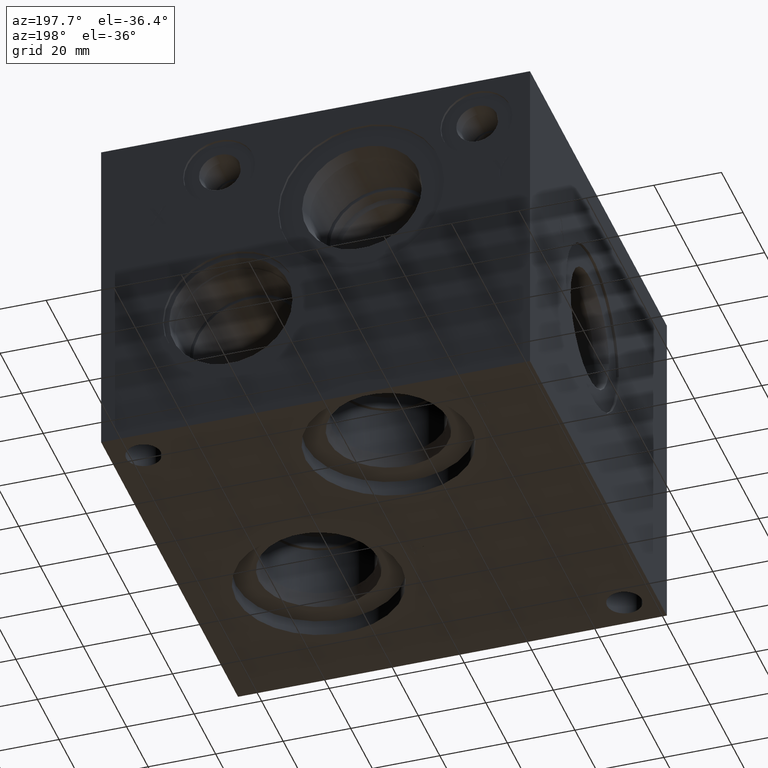
[diagram: clean part render]
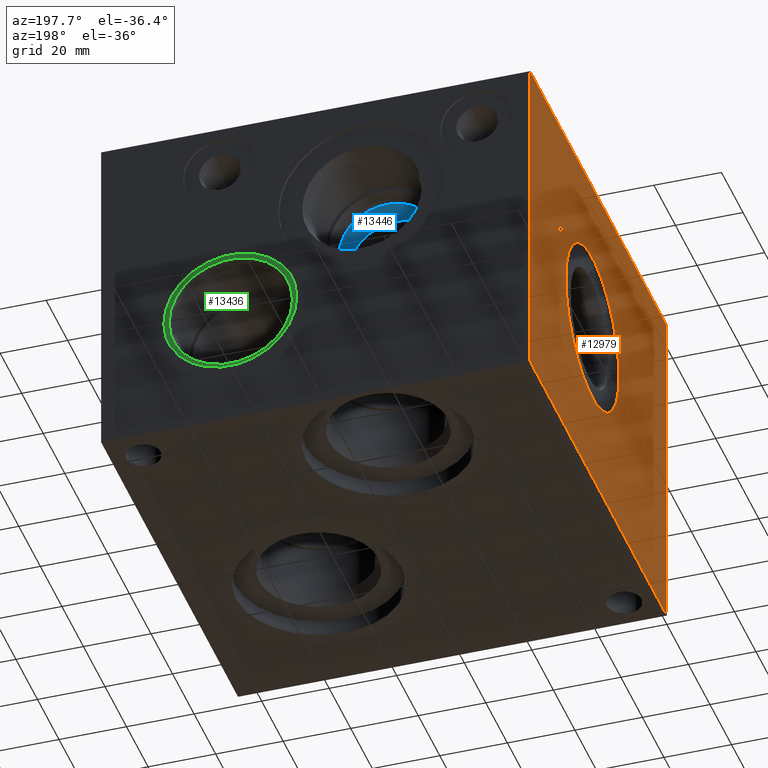
[diagram: same view with three faces highlighted in distinct colors, each labeled with its STEP entity id]
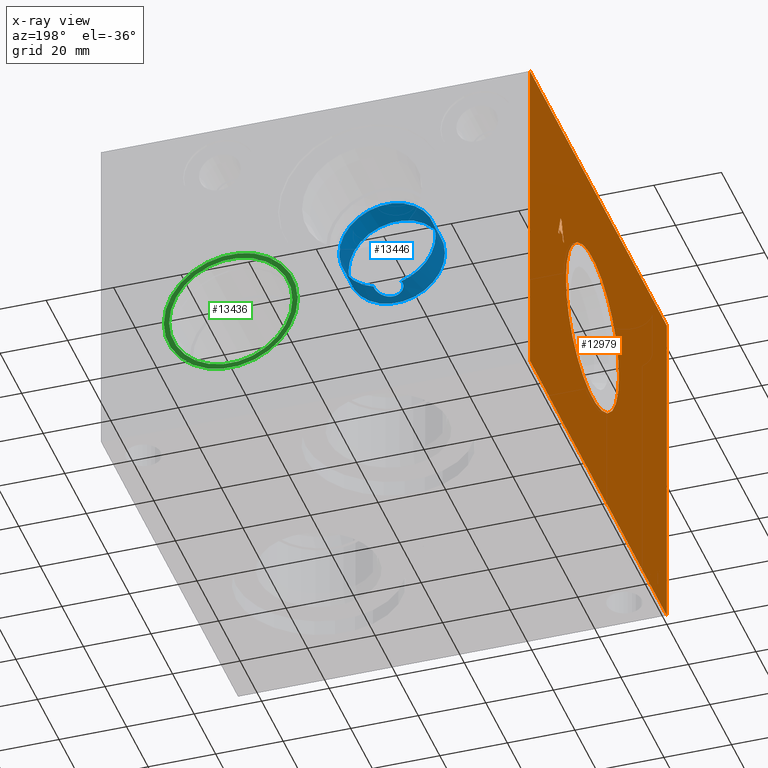
[diagram: x-ray of the same camera — body ghosted, the three highlighted faces saturated]
A machine part, auxiliary view with three faces highlighted in distinct colors.
The next image is the same camera in x-ray (body ghosted, the three faces saturated) — at least one of them is partly hidden behind the body in this view.
Their STEP definitions:

[orange] entity #12979 — the highlighted planar face has unit normal (-1, 0, 0).
#180=CIRCLE('',#13689,24.5618);
#181=CIRCLE('',#13690,24.5618);
#491=FACE_BOUND('',#1773,.T.);
#492=FACE_BOUND('',#1774,.T.);
#656=PLANE('',#13688);
#1058=FACE_OUTER_BOUND('',#1772,.T.);
#1772=EDGE_LOOP('',(#8903,#8904,#8905,#8906));
#1773=EDGE_LOOP('',(#8907,#8908));
#1774=EDGE_LOOP('',(#8909,#8910,#8911,#8912,#8913,#8914,#8915,#8916));
#2511=LINE('',#17613,#3752);
#2669=LINE('',#18087,#3910);
#2673=LINE('',#18095,#3914);
#2676=LINE('',#18101,#3917);
#2679=LINE('',#18107,#3920);
#2682=LINE('',#18113,#3923);
#2685=LINE('',#18119,#3926);
#2688=LINE('',#18125,#3929);
#2691=LINE('',#18130,#3932);
#2693=LINE('',#18135,#3934);
#2694=LINE('',#18137,#3935);
#2695=LINE('',#18138,#3936);
#3752=VECTOR('',#14514,10.);
#3910=VECTOR('',#14798,10.);
#3914=VECTOR('',#14804,10.);
#3917=VECTOR('',#14809,10.);
#3920=VECTOR('',#14814,10.);
#3923=VECTOR('',#14819,10.);
#3926=VECTOR('',#14824,10.);
#3929=VECTOR('',#14829,10.);
#3932=VECTOR('',#14834,10.);
#3934=VECTOR('',#14840,10.);
#3935=VECTOR('',#14841,10.);
#3936=VECTOR('',#14842,10.);
#5329=VERTEX_POINT('',#17609);
#5331=VERTEX_POINT('',#17612);
#5455=VERTEX_POINT('',#18085);
#5456=VERTEX_POINT('',#18086);
#5459=VERTEX_POINT('',#18094);
#5461=VERTEX_POINT('',#18100);
#5463=VERTEX_POINT('',#18106);
#5465=VERTEX_POINT('',#18112);
#5467=VERTEX_POINT('',#18118);
#5469=VERTEX_POINT('',#18124);
#5471=VERTEX_POINT('',#18134);
#5472=VERTEX_POINT('',#18136);
#5473=VERTEX_POINT('',#18139);
#5474=VERTEX_POINT('',#18140);
#6624=EDGE_CURVE('',#5331,#5329,#2511,.T.);
#6806=EDGE_CURVE('',#5455,#5456,#2669,.T.);
#6810=EDGE_CURVE('',#5459,#5455,#2673,.T.);
#6813=EDGE_CURVE('',#5461,#5459,#2676,.T.);
#6816=EDGE_CURVE('',#5463,#5461,#2679,.T.);
#6819=EDGE_CURVE('',#5465,#5463,#2682,.T.);
#6822=EDGE_CURVE('',#5467,#5465,#2685,.T.);
#6825=EDGE_CURVE('',#5469,#5467,#2688,.T.);
#6828=EDGE_CURVE('',#5456,#5469,#2691,.T.);
#6830=EDGE_CURVE('',#5329,#5471,#2693,.T.);
#6831=EDGE_CURVE('',#5472,#5471,#2694,.T.);
#6832=EDGE_CURVE('',#5331,#5472,#2695,.T.);
#6833=EDGE_CURVE('',#5473,#5474,#180,.T.);
#6834=EDGE_CURVE('',#5474,#5473,#181,.T.);
#8903=ORIENTED_EDGE('',*,*,#6624,.T.);
#8904=ORIENTED_EDGE('',*,*,#6830,.T.);
#8905=ORIENTED_EDGE('',*,*,#6831,.F.);
#8906=ORIENTED_EDGE('',*,*,#6832,.F.);
#8907=ORIENTED_EDGE('',*,*,#6833,.T.);
#8908=ORIENTED_EDGE('',*,*,#6834,.T.);
#8909=ORIENTED_EDGE('',*,*,#6806,.T.);
#8910=ORIENTED_EDGE('',*,*,#6828,.T.);
#8911=ORIENTED_EDGE('',*,*,#6825,.T.);
#8912=ORIENTED_EDGE('',*,*,#6822,.T.);
#8913=ORIENTED_EDGE('',*,*,#6819,.T.);
#8914=ORIENTED_EDGE('',*,*,#6816,.T.);
#8915=ORIENTED_EDGE('',*,*,#6813,.T.);
#8916=ORIENTED_EDGE('',*,*,#6810,.T.);
#12979=ADVANCED_FACE('',(#1058,#491,#492),#656,.T.);
#13688=AXIS2_PLACEMENT_3D('',#18133,#14838,#14839);
#13689=AXIS2_PLACEMENT_3D('',#18141,#14843,#14844);
#13690=AXIS2_PLACEMENT_3D('',#18142,#14845,#14846);
#14514=DIRECTION('',(0.,-1.,0.));
#14798=DIRECTION('',(0.,1.,0.));
#14804=DIRECTION('',(0.,0.308774363938383,-0.951135317488761));
#14809=DIRECTION('',(0.,1.,3.6645508346136E-15));
#14814=DIRECTION('',(0.,0.308774363938382,0.951135317488762));
#14819=DIRECTION('',(0.,1.,0.));
#14824=DIRECTION('',(0.,-0.319451166674564,-0.947602739606772));
#14829=DIRECTION('',(0.,-1.,-8.5445715005099E-15));
#14834=DIRECTION('',(0.,-0.319451166674572,0.947602739606769));
#14838=DIRECTION('center_axis',(-1.,0.,0.));
#14839=DIRECTION('ref_axis',(0.,-1.,0.));
#14840=DIRECTION('',(0.,0.,1.));
#14841=DIRECTION('',(0.,-1.,0.));
#14842=DIRECTION('',(0.,0.,1.));
#14843=DIRECTION('center_axis',(1.,0.,0.));
#14844=DIRECTION('ref_axis',(0.,1.,0.));
#14845=DIRECTION('center_axis',(1.,0.,0.));
#14846=DIRECTION('ref_axis',(0.,1.,0.));
#17609=CARTESIAN_POINT('',(0.,0.,0.));
#17612=CARTESIAN_POINT('',(0.,127.,0.));
#17613=CARTESIAN_POINT('',(0.,127.,0.));
#18085=CARTESIAN_POINT('',(0.,99.99320301059,63.5));
#18086=CARTESIAN_POINT('',(0.,100.847416936173,63.5));
#18087=CARTESIAN_POINT('',(0.,113.496601505295,63.5));
#18094=CARTESIAN_POINT('',(0.,99.4168659041728,65.2753241224459));
#18095=CARTESIAN_POINT('',(0.,110.317007115968,31.6989962825411));
#18100=CARTESIAN_POINT('',(0.,96.9931625370075,65.2753241224459));
#18101=CARTESIAN_POINT('',(0.,111.996581268504,65.275324122446));
#18106=CARTESIAN_POINT('',(0.,96.4168254305903,63.5));
#18107=CARTESIAN_POINT('',(0.,88.5502130135265,39.268024251009));
#18112=CARTESIAN_POINT('',(0.,95.5265904358565,63.5));
#18113=CARTESIAN_POINT('',(0.,111.263295217928,63.5));
#18118=CARTESIAN_POINT('',(0.,97.6672711168348,69.8499999046326));
#18119=CARTESIAN_POINT('',(0.,88.5917150936911,42.9287592013649));
#18124=CARTESIAN_POINT('',(0.,98.7067362551944,69.8499999046326));
#18125=CARTESIAN_POINT('',(0.,112.853368127597,69.8499999046327));
#18130=CARTESIAN_POINT('',(0.,111.79297145952,31.031696437955));
#18133=CARTESIAN_POINT('Origin',(0.,127.,0.));
#18134=CARTESIAN_POINT('',(0.,0.,101.6));
#18135=CARTESIAN_POINT('',(0.,0.,0.));
#18136=CARTESIAN_POINT('',(0.,127.,101.6));
#18137=CARTESIAN_POINT('',(0.,127.,101.6));
#18138=CARTESIAN_POINT('',(0.,127.,0.));
#18139=CARTESIAN_POINT('',(0.,93.6244,52.3748));
#18140=CARTESIAN_POINT('',(0.,44.5008,52.3748));
#18141=CARTESIAN_POINT('Origin',(0.,69.0626,52.3748));
#18142=CARTESIAN_POINT('Origin',(0.,69.0626,52.3748));

[blue] entity #13446 — the highlighted cylindrical surface (bore or boss wall) has radius 14.2875 mm, axis along (0, 1, 0).
#35=CYLINDRICAL_SURFACE('',#14093,14.2875);
#258=CIRCLE('',#14090,14.2875);
#260=CIRCLE('',#14092,14.2875);
#261=CIRCLE('',#14094,14.2875);
#262=CIRCLE('',#14095,14.2875);
#1525=FACE_OUTER_BOUND('',#2286,.T.);
#2286=EDGE_LOOP('',(#11472,#11473,#11474,#11475,#11476,#11477,#11478,#11479));
#3600=LINE('',#22776,#4841);
#4841=VECTOR('',#16559,14.2875);
#5292=B_SPLINE_CURVE_WITH_KNOTS('',3,(#22621,#22622,#22623,#22624,#22625,
#22626,#22627,#22628,#22629,#22630,#22631,#22632,#22633,#22634,#22635,#22636,
#22637,#22638,#22639,#22640,#22641),.UNSPECIFIED.,.F.,.F.,(4,3,2,2,2,2,
2,2,2,4),(-0.0979516596040309,0.,0.161297183410385,0.32259436682077,0.485403173168935,
0.648211979517101,0.811020785865266,0.973829592213431,1.13512677562382,
1.2964239590342),.UNSPECIFIED.);
#5296=B_SPLINE_CURVE_WITH_KNOTS('',3,(#22675,#22676,#22677,#22678),
 .UNSPECIFIED.,.F.,.F.,(4,4),(1.2964239590342,1.39437561938123),
 .UNSPECIFIED.);
#6300=VERTEX_POINT('',#22618);
#6301=VERTEX_POINT('',#22620);
#6304=VERTEX_POINT('',#22668);
#6333=VERTEX_POINT('',#22766);
#6334=VERTEX_POINT('',#22767);
#6336=VERTEX_POINT('',#22774);
#8073=EDGE_CURVE('',#6301,#6300,#5292,.T.);
#8077=EDGE_CURVE('',#6300,#6304,#5296,.T.);
#8119=EDGE_CURVE('',#6333,#6334,#258,.T.);
#8122=EDGE_CURVE('',#6334,#6333,#260,.T.);
#8123=EDGE_CURVE('',#6336,#6304,#261,.T.);
#8124=EDGE_CURVE('',#6336,#6334,#3600,.T.);
#8125=EDGE_CURVE('',#6301,#6336,#262,.T.);
#11472=ORIENTED_EDGE('',*,*,#8073,.T.);
#11473=ORIENTED_EDGE('',*,*,#8077,.T.);
#11474=ORIENTED_EDGE('',*,*,#8123,.F.);
#11475=ORIENTED_EDGE('',*,*,#8124,.T.);
#11476=ORIENTED_EDGE('',*,*,#8119,.F.);
#11477=ORIENTED_EDGE('',*,*,#8122,.F.);
#11478=ORIENTED_EDGE('',*,*,#8124,.F.);
#11479=ORIENTED_EDGE('',*,*,#8125,.F.);
#13446=ADVANCED_FACE('',(#1525),#35,.F.);
#14090=AXIS2_PLACEMENT_3D('',#22768,#16548,#16549);
#14092=AXIS2_PLACEMENT_3D('',#22772,#16553,#16554);
#14093=AXIS2_PLACEMENT_3D('',#22773,#16555,#16556);
#14094=AXIS2_PLACEMENT_3D('',#22775,#16557,#16558);
#14095=AXIS2_PLACEMENT_3D('',#22777,#16560,#16561);
#16548=DIRECTION('center_axis',(0.,1.,0.));
#16549=DIRECTION('ref_axis',(1.,0.,0.));
#16553=DIRECTION('center_axis',(0.,1.,0.));
#16554=DIRECTION('ref_axis',(1.,0.,0.));
#16555=DIRECTION('center_axis',(0.,1.,0.));
#16556=DIRECTION('ref_axis',(1.,0.,0.));
#16557=DIRECTION('center_axis',(0.,-1.,0.));
#16558=DIRECTION('ref_axis',(1.,0.,0.));
#16559=DIRECTION('',(0.,-1.,0.));
#16560=DIRECTION('center_axis',(0.,-1.,0.));
#16561=DIRECTION('ref_axis',(1.,0.,0.));
#22618=CARTESIAN_POINT('',(45.8218053883511,101.6,55.4035408533028));
#22620=CARTESIAN_POINT('',(54.0912491083062,102.601803143838,55.3696354670249));
#22621=CARTESIAN_POINT('Ctrl Pts',(54.0912491083062,102.601803143838,55.3696354670249));
#22622=CARTESIAN_POINT('Ctrl Pts',(54.167313833517,102.266668976539,55.3922924543346));
#22623=CARTESIAN_POINT('Ctrl Pts',(54.2033946116489,101.926505532013,55.4035408533028));
#22624=CARTESIAN_POINT('Ctrl Pts',(54.2033946116489,101.6,55.4035408533028));
#22625=CARTESIAN_POINT('Ctrl Pts',(54.2033946116489,101.062342721965,55.4035408533028));
#22626=CARTESIAN_POINT('Ctrl Pts',(54.102054243458,100.488567467213,55.371168811308));
#22627=CARTESIAN_POINT('Ctrl Pts',(53.6880430856499,99.4288011749569,55.2542676539193));
#22628=CARTESIAN_POINT('Ctrl Pts',(53.3754141893481,98.942600643522,55.1714960396887));
#22629=CARTESIAN_POINT('Ctrl Pts',(52.6439225953343,98.1632257769076,55.0144670097015));
#22630=CARTESIAN_POINT('Ctrl Pts',(52.1733542972662,97.8184929397376,54.929660033541));
#22631=CARTESIAN_POINT('Ctrl Pts',(51.1292049143388,97.3571428601612,54.8091076158076));
#22632=CARTESIAN_POINT('Ctrl Pts',(50.5552960211605,97.2408151692179,54.7751));
#22633=CARTESIAN_POINT('Ctrl Pts',(49.4699039788395,97.2408151692179,54.7751));
#22634=CARTESIAN_POINT('Ctrl Pts',(48.8959950856612,97.3571428601612,54.8091076158077));
#22635=CARTESIAN_POINT('Ctrl Pts',(47.8518457027338,97.8184929397376,54.929660033541));
#22636=CARTESIAN_POINT('Ctrl Pts',(47.3812774046657,98.1632257769076,55.0144670097015));
#22637=CARTESIAN_POINT('Ctrl Pts',(46.6497858106519,98.942600643522,55.1714960396887));
#22638=CARTESIAN_POINT('Ctrl Pts',(46.3371569143501,99.428801174957,55.2542676539193));
#22639=CARTESIAN_POINT('Ctrl Pts',(45.923145756542,100.488567467213,55.371168811308));
#22640=CARTESIAN_POINT('Ctrl Pts',(45.8218053883511,101.062342721965,55.4035408533028));
#22641=CARTESIAN_POINT('Ctrl Pts',(45.8218053883511,101.6,55.4035408533028));
#22668=CARTESIAN_POINT('',(45.9339508916938,102.601803143838,55.3696354670249));
#22675=CARTESIAN_POINT('Ctrl Pts',(45.8218053883511,101.6,55.4035408533028));
#22676=CARTESIAN_POINT('Ctrl Pts',(45.8218053883511,101.92650553449,55.4035408533028));
#22677=CARTESIAN_POINT('Ctrl Pts',(45.8578861661531,102.266668975086,55.3922924544328));
#22678=CARTESIAN_POINT('Ctrl Pts',(45.9339508916938,102.601803143838,55.3696354670249));
#22766=CARTESIAN_POINT('',(64.3001,93.98,69.0626));
#22767=CARTESIAN_POINT('',(35.7251,93.98,69.0626));
#22768=CARTESIAN_POINT('Origin',(50.0126,93.98,69.0626));
#22772=CARTESIAN_POINT('Origin',(50.0126,93.98,69.0626));
#22773=CARTESIAN_POINT('Origin',(50.0126,110.49,69.0626));
#22774=CARTESIAN_POINT('',(35.7251,102.601803143838,69.0626));
#22775=CARTESIAN_POINT('Origin',(50.0126,102.601803143838,69.0626));
#22776=CARTESIAN_POINT('',(35.7251,110.49,69.0626));
#22777=CARTESIAN_POINT('Origin',(50.0126,102.601803143838,69.0626));

[green] entity #13436 — the highlighted planar face has unit normal (0, -1, 0).
#240=CIRCLE('',#14062,19.8374);
#241=CIRCLE('',#14063,19.8374);
#242=CIRCLE('',#14065,18.2626);
#243=CIRCLE('',#14066,18.2626);
#535=FACE_BOUND('',#2274,.T.);
#938=PLANE('',#14064);
#1515=FACE_OUTER_BOUND('',#2273,.T.);
#2273=EDGE_LOOP('',(#11419,#11420));
#2274=EDGE_LOOP('',(#11421,#11422));
#6315=VERTEX_POINT('',#22713);
#6316=VERTEX_POINT('',#22715);
#6317=VERTEX_POINT('',#22719);
#6318=VERTEX_POINT('',#22720);
#8095=EDGE_CURVE('',#6315,#6316,#240,.T.);
#8096=EDGE_CURVE('',#6316,#6315,#241,.T.);
#8097=EDGE_CURVE('',#6317,#6318,#242,.T.);
#8098=EDGE_CURVE('',#6318,#6317,#243,.T.);
#11419=ORIENTED_EDGE('',*,*,#8096,.F.);
#11420=ORIENTED_EDGE('',*,*,#8095,.F.);
#11421=ORIENTED_EDGE('',*,*,#8097,.T.);
#11422=ORIENTED_EDGE('',*,*,#8098,.T.);
#13436=ADVANCED_FACE('',(#1515,#535),#938,.F.);
#14062=AXIS2_PLACEMENT_3D('',#22716,#16486,#16487);
#14063=AXIS2_PLACEMENT_3D('',#22717,#16488,#16489);
#14064=AXIS2_PLACEMENT_3D('',#22718,#16490,#16491);
#14065=AXIS2_PLACEMENT_3D('',#22721,#16492,#16493);
#14066=AXIS2_PLACEMENT_3D('',#22722,#16494,#16495);
#16486=DIRECTION('center_axis',(0.,-1.,0.));
#16487=DIRECTION('ref_axis',(1.,0.,0.));
#16488=DIRECTION('center_axis',(0.,-1.,0.));
#16489=DIRECTION('ref_axis',(1.,0.,0.));
#16490=DIRECTION('center_axis',(0.,-1.,0.));
#16491=DIRECTION('ref_axis',(0.,0.,-1.));
#16492=DIRECTION('center_axis',(0.,-1.,0.));
#16493=DIRECTION('ref_axis',(1.,0.,0.));
#16494=DIRECTION('center_axis',(0.,-1.,0.));
#16495=DIRECTION('ref_axis',(1.,0.,0.));
#22713=CARTESIAN_POINT('',(69.0626,126.0856,38.1));
#22715=CARTESIAN_POINT('',(108.7374,126.0856,38.1));
#22716=CARTESIAN_POINT('Origin',(88.9,126.0856,38.1));
#22717=CARTESIAN_POINT('Origin',(88.9,126.0856,38.1));
#22718=CARTESIAN_POINT('Origin',(107.1626,126.0856,38.1));
#22719=CARTESIAN_POINT('',(107.1626,126.0856,38.1));
#22720=CARTESIAN_POINT('',(70.6374,126.0856,38.1));
#22721=CARTESIAN_POINT('Origin',(88.9,126.0856,38.1));
#22722=CARTESIAN_POINT('Origin',(88.9,126.0856,38.1));